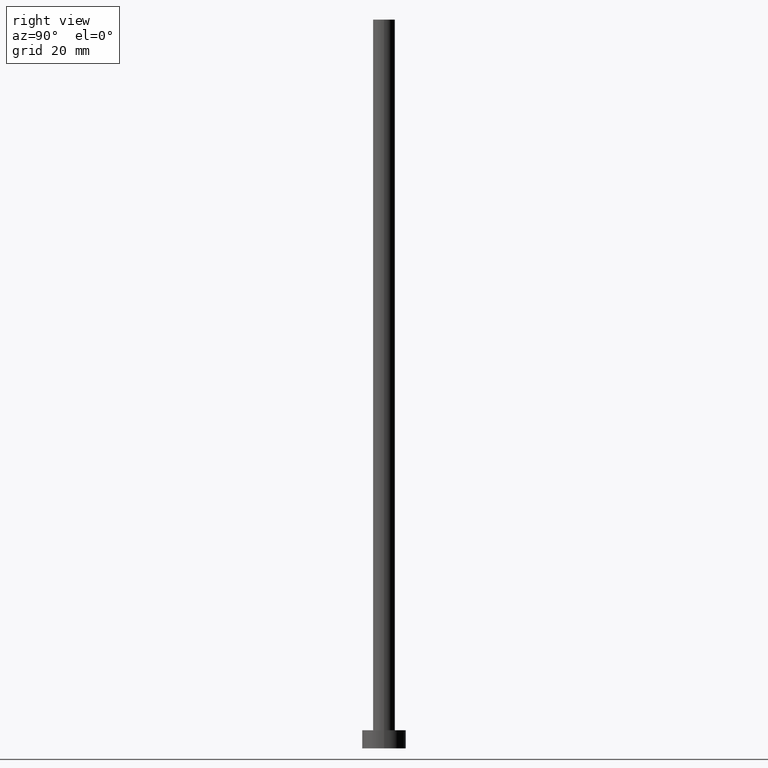
[diagram: clean part render]
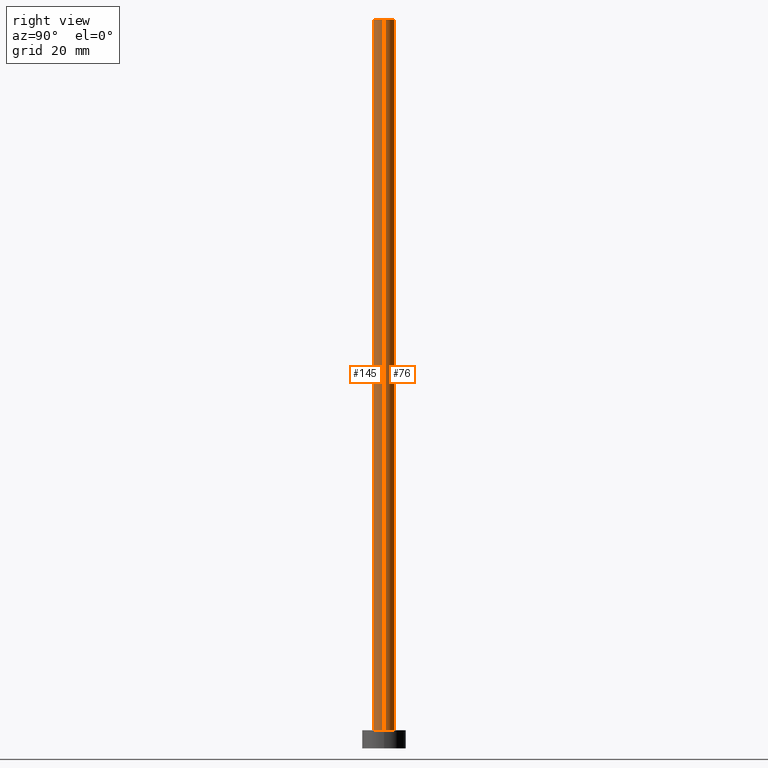
[diagram: same view with one multi-face feature highlighted, each face labeled with its STEP entity id]
A machine part, right view. The highlighted faces form ONE feature: a constant-radius fillet chain: 2 tangent blend faces with common blend radius 3 mm. The faces share edges in the B-rep.
Their STEP definitions:
[1] entity #145 (Cylinder):
#3 = VECTOR ( 'NONE', #108, 1000.000000000000000 ) ;
#11 = VERTEX_POINT ( 'NONE', #62 ) ;
#36 = LINE ( 'NONE', #122, #3 ) ;
#42 = CARTESIAN_POINT ( 'NONE',  ( 0.000000000000000000, 0.000000000000000000, 200.0000000000000000 ) ) ;
#52 = DIRECTION ( 'NONE',  ( -1.000000000000000000, 0.000000000000000000, 0.000000000000000000 ) ) ;
#53 = DIRECTION ( 'NONE',  ( 1.000000000000000000, 0.000000000000000000, 0.000000000000000000 ) ) ;
#62 = CARTESIAN_POINT ( 'NONE',  ( -3.000000000000000444, 0.000000000000000000, 5.000000000000000000 ) ) ;
#71 = CYLINDRICAL_SURFACE ( 'NONE', #155, 3.000000000000000444 ) ;
#73 = CARTESIAN_POINT ( 'NONE',  ( 3.000000000000000444, 3.673940397442060361E-16, 200.0000000000000000 ) ) ;
#86 = DIRECTION ( 'NONE',  ( -0.000000000000000000, -0.000000000000000000, -1.000000000000000000 ) ) ;
#89 = ORIENTED_EDGE ( 'NONE', *, *, #238, .T. ) ;
#93 = CIRCLE ( 'NONE', #124, 3.000000000000000444 ) ;
#94 = VERTEX_POINT ( 'NONE', #223 ) ;
#108 = DIRECTION ( 'NONE',  ( -0.000000000000000000, -0.000000000000000000, -1.000000000000000000 ) ) ;
#110 = CARTESIAN_POINT ( 'NONE',  ( -3.000000000000000444, 0.000000000000000000, 200.0000000000000000 ) ) ;
#113 = LINE ( 'NONE', #110, #231 ) ;
#122 = CARTESIAN_POINT ( 'NONE',  ( 3.000000000000000444, 3.673940397442060361E-16, 200.0000000000000000 ) ) ;
#124 = AXIS2_PLACEMENT_3D ( 'NONE', #42, #147, #252 ) ;
#132 = ORIENTED_EDGE ( 'NONE', *, *, #176, .T. ) ;
#144 = FACE_OUTER_BOUND ( 'NONE', #215, .T. ) ;
#145 = ADVANCED_FACE ( 'NONE', ( #144 ), #71, .T. ) ;
#147 = DIRECTION ( 'NONE',  ( 0.000000000000000000, 0.000000000000000000, 1.000000000000000000 ) ) ;
#153 = VERTEX_POINT ( 'NONE', #73 ) ;
#155 = AXIS2_PLACEMENT_3D ( 'NONE', #180, #181, #52 ) ;
#157 = VERTEX_POINT ( 'NONE', #227 ) ;
#176 = EDGE_CURVE ( 'NONE', #11, #94, #213, .T. ) ;
#180 = CARTESIAN_POINT ( 'NONE',  ( 0.000000000000000000, 0.000000000000000000, 200.0000000000000000 ) ) ;
#181 = DIRECTION ( 'NONE',  ( -0.000000000000000000, -0.000000000000000000, -1.000000000000000000 ) ) ;
#185 = EDGE_CURVE ( 'NONE', #153, #94, #36, .T. ) ;
#201 = DIRECTION ( 'NONE',  ( 0.000000000000000000, 0.000000000000000000, 1.000000000000000000 ) ) ;
#213 = CIRCLE ( 'NONE', #221, 3.000000000000000444 ) ;
#215 = EDGE_LOOP ( 'NONE', ( #244, #253, #89, #132 ) ) ;
#221 = AXIS2_PLACEMENT_3D ( 'NONE', #250, #201, #53 ) ;
#223 = CARTESIAN_POINT ( 'NONE',  ( 3.000000000000000444, 3.673940397442060361E-16, 5.000000000000000000 ) ) ;
#227 = CARTESIAN_POINT ( 'NONE',  ( -3.000000000000000444, 0.000000000000000000, 200.0000000000000000 ) ) ;
#231 = VECTOR ( 'NONE', #86, 1000.000000000000000 ) ;
#238 = EDGE_CURVE ( 'NONE', #157, #11, #113, .T. ) ;
#244 = ORIENTED_EDGE ( 'NONE', *, *, #185, .F. ) ;
#246 = EDGE_CURVE ( 'NONE', #157, #153, #93, .T. ) ;
#250 = CARTESIAN_POINT ( 'NONE',  ( 0.000000000000000000, 0.000000000000000000, 5.000000000000000000 ) ) ;
#252 = DIRECTION ( 'NONE',  ( 1.000000000000000000, 0.000000000000000000, 0.000000000000000000 ) ) ;
#253 = ORIENTED_EDGE ( 'NONE', *, *, #246, .F. ) ;
[2] entity #76 (Cylinder):
#3 = VECTOR ( 'NONE', #108, 1000.000000000000000 ) ;
#11 = VERTEX_POINT ( 'NONE', #62 ) ;
#17 = ORIENTED_EDGE ( 'NONE', *, *, #238, .F. ) ;
#25 = EDGE_CURVE ( 'NONE', #153, #157, #72, .T. ) ;
#30 = ORIENTED_EDGE ( 'NONE', *, *, #185, .T. ) ;
#33 = DIRECTION ( 'NONE',  ( 0.000000000000000000, 0.000000000000000000, 1.000000000000000000 ) ) ;
#36 = LINE ( 'NONE', #122, #3 ) ;
#62 = CARTESIAN_POINT ( 'NONE',  ( -3.000000000000000444, 0.000000000000000000, 5.000000000000000000 ) ) ;
#66 = CARTESIAN_POINT ( 'NONE',  ( 0.000000000000000000, 0.000000000000000000, 200.0000000000000000 ) ) ;
#72 = CIRCLE ( 'NONE', #220, 3.000000000000000444 ) ;
#73 = CARTESIAN_POINT ( 'NONE',  ( 3.000000000000000444, 3.673940397442060361E-16, 200.0000000000000000 ) ) ;
#76 = ADVANCED_FACE ( 'NONE', ( #159 ), #245, .T. ) ;
#80 = DIRECTION ( 'NONE',  ( 0.000000000000000000, 0.000000000000000000, 1.000000000000000000 ) ) ;
#86 = DIRECTION ( 'NONE',  ( -0.000000000000000000, -0.000000000000000000, -1.000000000000000000 ) ) ;
#94 = VERTEX_POINT ( 'NONE', #223 ) ;
#99 = DIRECTION ( 'NONE',  ( -0.000000000000000000, -0.000000000000000000, -1.000000000000000000 ) ) ;
#105 = DIRECTION ( 'NONE',  ( 1.000000000000000000, 0.000000000000000000, 0.000000000000000000 ) ) ;
#108 = DIRECTION ( 'NONE',  ( -0.000000000000000000, -0.000000000000000000, -1.000000000000000000 ) ) ;
#110 = CARTESIAN_POINT ( 'NONE',  ( -3.000000000000000444, 0.000000000000000000, 200.0000000000000000 ) ) ;
#113 = LINE ( 'NONE', #110, #231 ) ;
#117 = AXIS2_PLACEMENT_3D ( 'NONE', #199, #33, #105 ) ;
#118 = CARTESIAN_POINT ( 'NONE',  ( 0.000000000000000000, 0.000000000000000000, 200.0000000000000000 ) ) ;
#122 = CARTESIAN_POINT ( 'NONE',  ( 3.000000000000000444, 3.673940397442060361E-16, 200.0000000000000000 ) ) ;
#128 = ORIENTED_EDGE ( 'NONE', *, *, #202, .T. ) ;
#141 = CIRCLE ( 'NONE', #117, 3.000000000000000444 ) ;
#153 = VERTEX_POINT ( 'NONE', #73 ) ;
#157 = VERTEX_POINT ( 'NONE', #227 ) ;
#159 = FACE_OUTER_BOUND ( 'NONE', #236, .T. ) ;
#163 = ORIENTED_EDGE ( 'NONE', *, *, #25, .F. ) ;
#173 = DIRECTION ( 'NONE',  ( -1.000000000000000000, 0.000000000000000000, 0.000000000000000000 ) ) ;
#185 = EDGE_CURVE ( 'NONE', #153, #94, #36, .T. ) ;
#199 = CARTESIAN_POINT ( 'NONE',  ( 0.000000000000000000, 0.000000000000000000, 5.000000000000000000 ) ) ;
#202 = EDGE_CURVE ( 'NONE', #94, #11, #141, .T. ) ;
#219 = DIRECTION ( 'NONE',  ( 1.000000000000000000, 0.000000000000000000, 0.000000000000000000 ) ) ;
#220 = AXIS2_PLACEMENT_3D ( 'NONE', #66, #80, #219 ) ;
#223 = CARTESIAN_POINT ( 'NONE',  ( 3.000000000000000444, 3.673940397442060361E-16, 5.000000000000000000 ) ) ;
#227 = CARTESIAN_POINT ( 'NONE',  ( -3.000000000000000444, 0.000000000000000000, 200.0000000000000000 ) ) ;
#228 = AXIS2_PLACEMENT_3D ( 'NONE', #118, #99, #173 ) ;
#231 = VECTOR ( 'NONE', #86, 1000.000000000000000 ) ;
#236 = EDGE_LOOP ( 'NONE', ( #163, #30, #128, #17 ) ) ;
#238 = EDGE_CURVE ( 'NONE', #157, #11, #113, .T. ) ;
#245 = CYLINDRICAL_SURFACE ( 'NONE', #228, 3.000000000000000444 ) ;